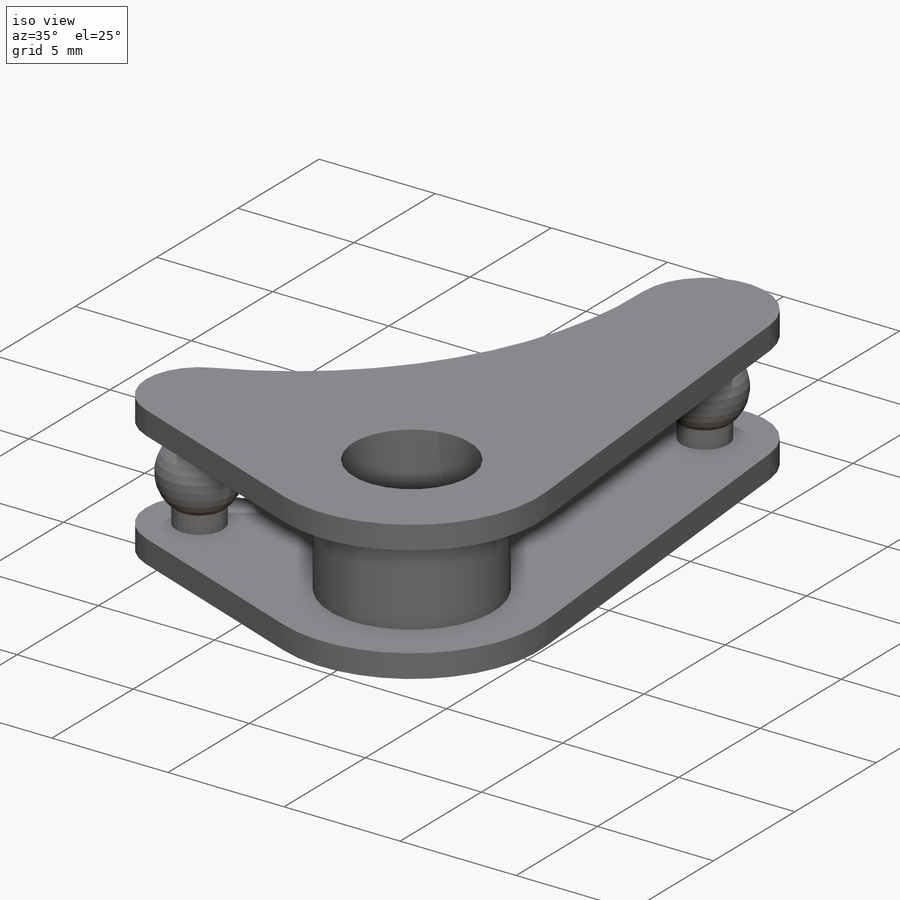
[diagram: iso view]
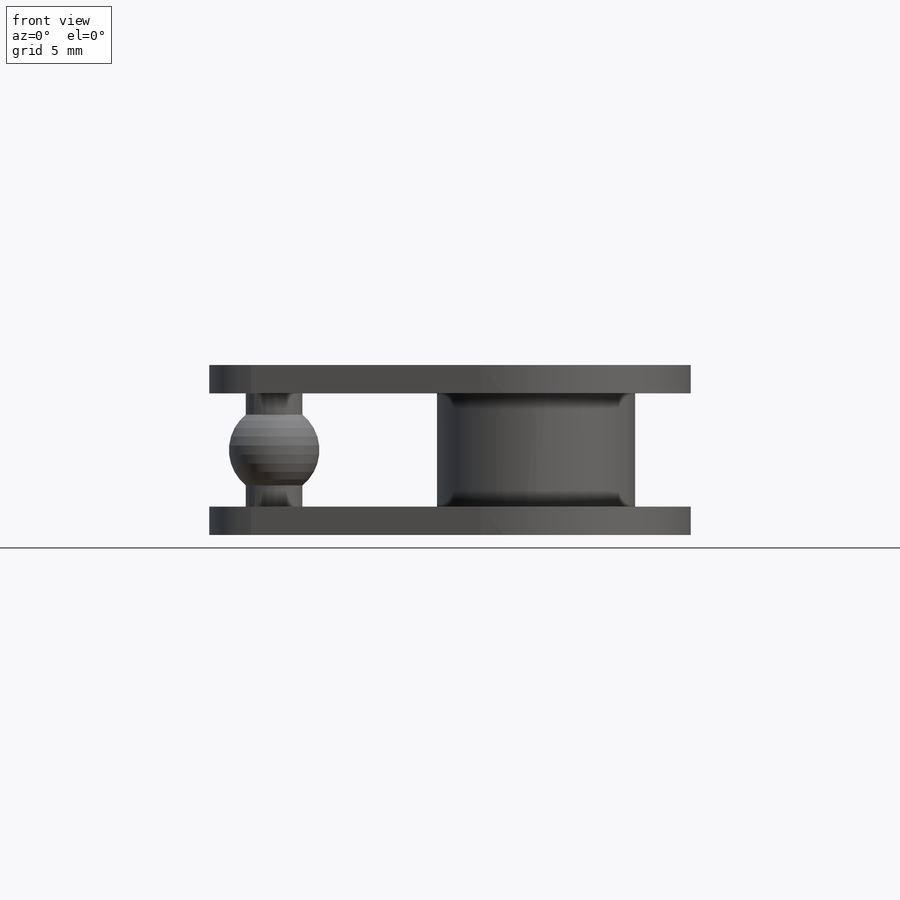
[diagram: front view]
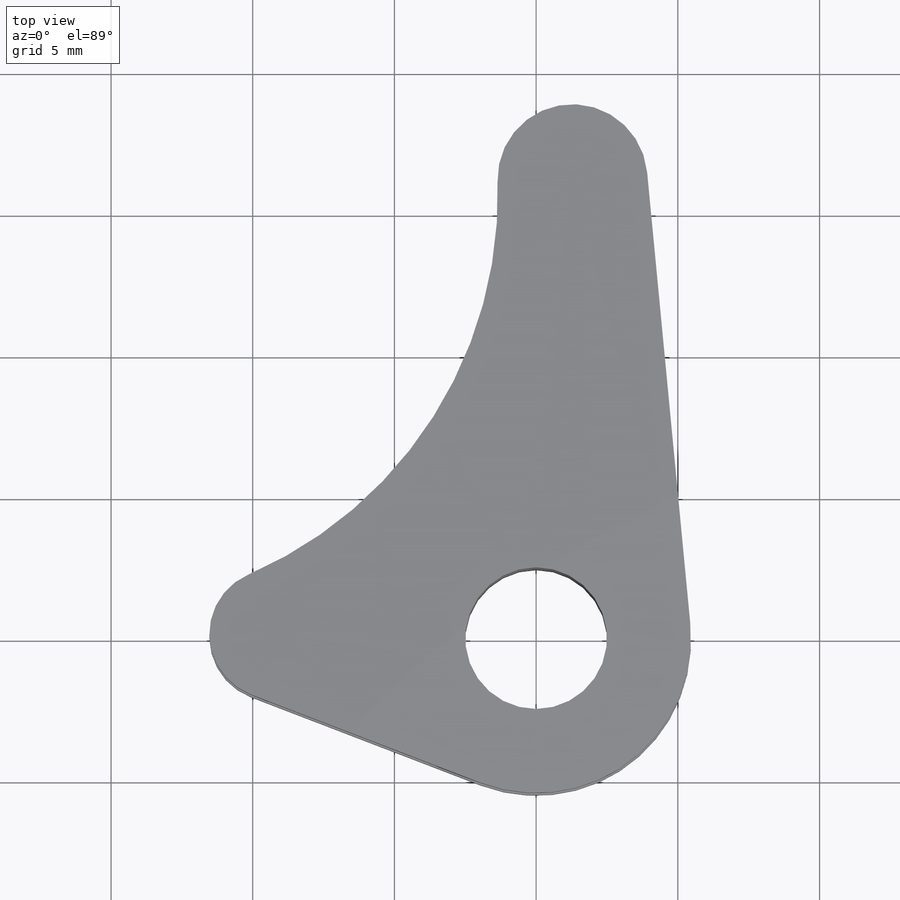
[diagram: top view]
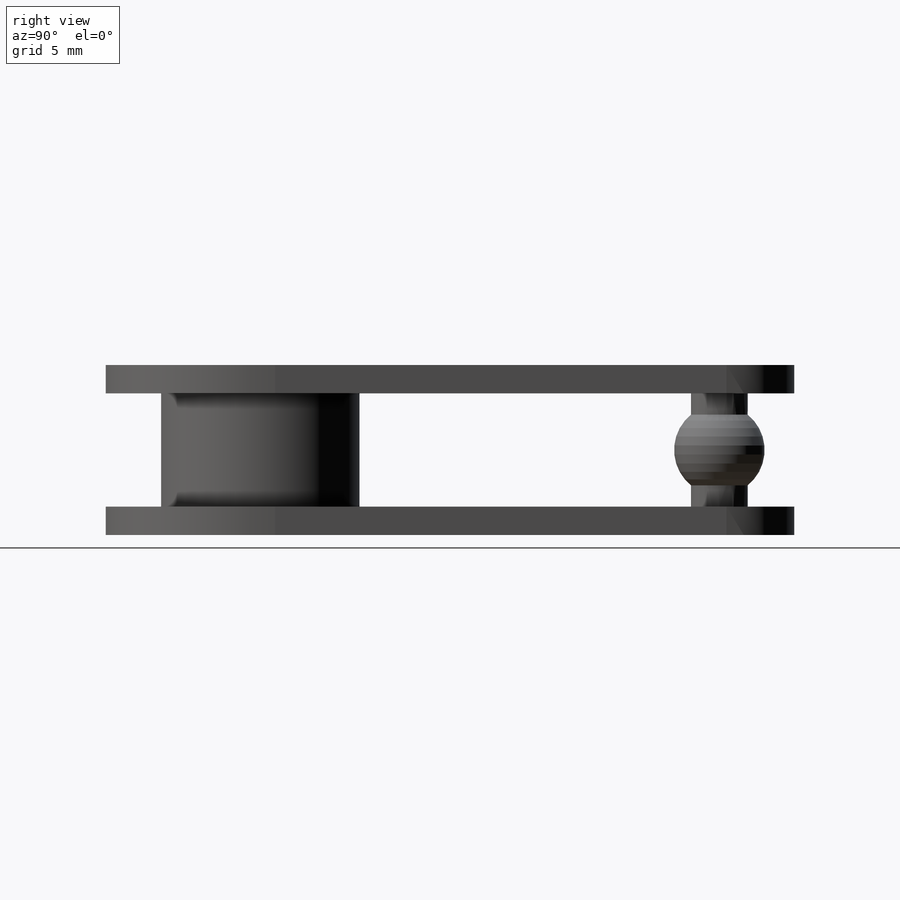
[diagram: right view]
SOLIDWORKS PART (.sldprt)
format: sldprt  version: not decoded by parser v0  size: 265,728 bytes
history: native  units: mm
features: sketch x7, material x1, extrude x1, shell x1, revolve x1 (+11 scaffold rows collapsed)
feature tree (22):
  scaffold x11  (default folders/planes/origin — collapsed)
  material  "Material <not specified>"
  sketch  "Sketch1"  dims[D1=0.001mm D2=0.001mm D3=5.0mm]
  extrude  "Boss-Extrude1"  Depth=6mm
  shell  "Shell2"  Thickness=1mm
  sketch  "Sketch3"  dims[D1=0.001mm D2=0.001mm D3=5.0mm]
  sketch  "Sketch4"
  sketch  "3DSketch3"  dims[D1=1.6mm]
  sketch  "Sketch5"
  sketch  "3DSketch4"
  sketch  "Sketch6"  dims[D1=1.6mm]
  revolve  "Revolve4"  Angle=360deg
decode coverage: 7 of 10 modeling features carry decoded parameters
note: suppression state not decoded; provenance and decode notes live in map.json
